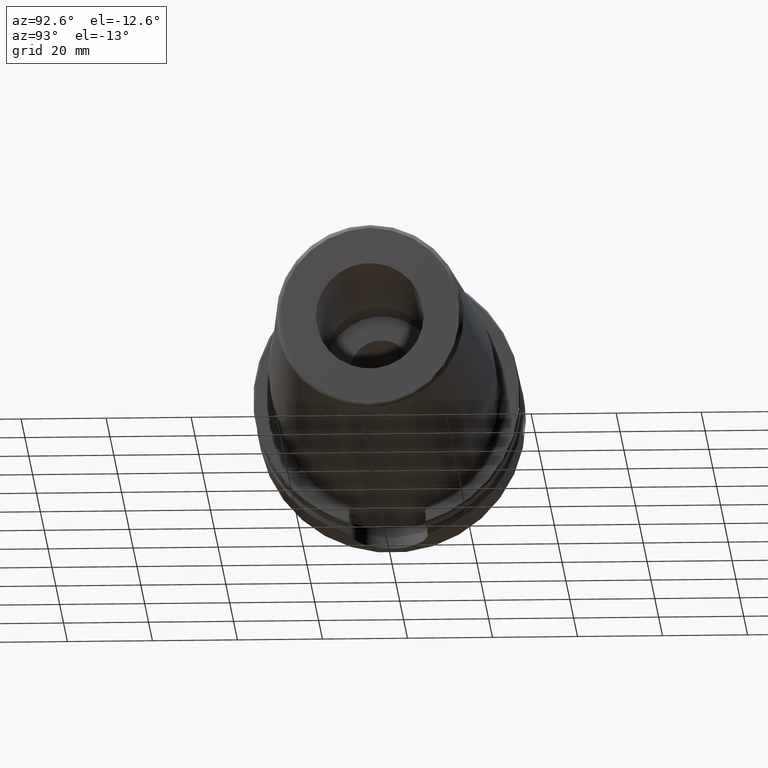
[diagram: clean part render]
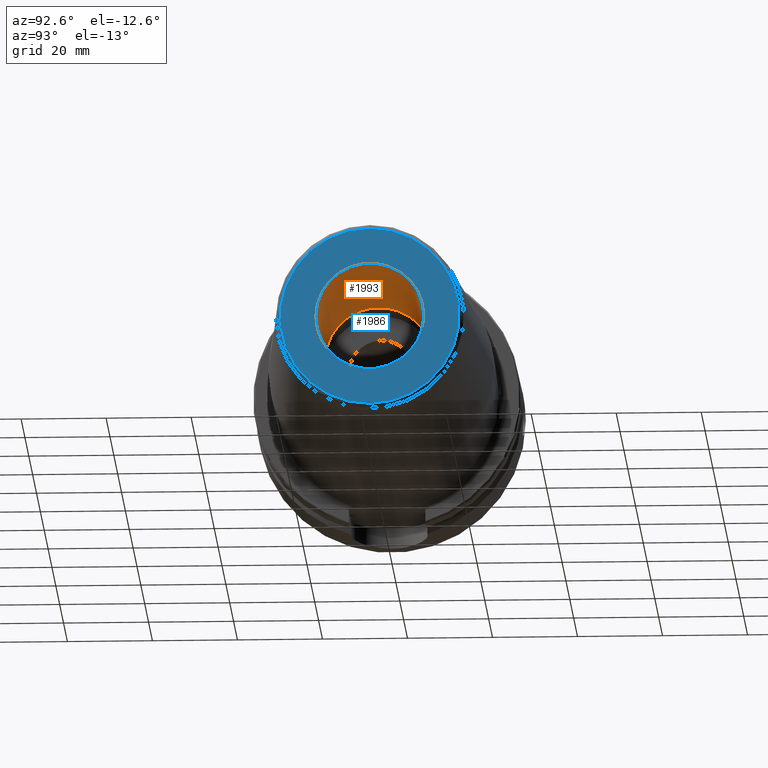
[diagram: same view with the hole feature highlighted: cylindrical wall and planar end face, labeled with their STEP entity ids]
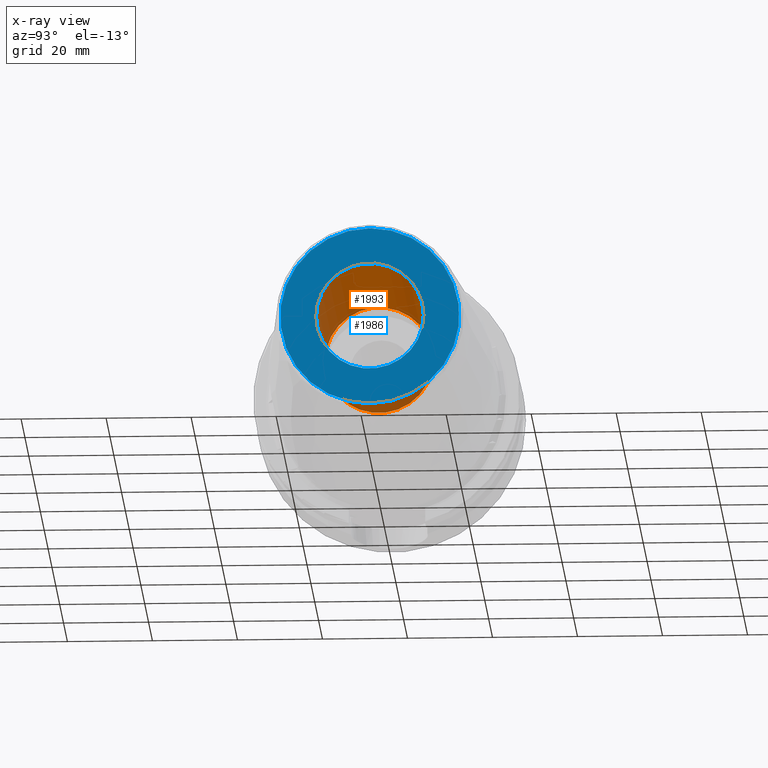
[diagram: x-ray of the same camera — body ghosted, the hole faces saturated]
A machine part, auxiliary view. The highlighted faces form one hole feature of diameter 25.4 mm: the cylindrical wall (entity #1993, orange) and its adjacent planar end face (entity #1986, blue) — they share a circular edge in the B-rep.
The next image is the same camera in x-ray (body ghosted, the hole faces saturated) — the bore reads through the body.
Wall:
#187=CYLINDRICAL_SURFACE('',#2153,12.7);
#229=FACE_OUTER_BOUND('',#349,.T.);
#349=EDGE_LOOP('',(#1379,#1380,#1381,#1382));
#475=LINE('',#3102,#579);
#579=VECTOR('',#2444,12.7);
#683=CIRCLE('',#2137,12.7);
#693=CIRCLE('',#2154,12.7);
#808=VERTEX_POINT('',#3006);
#828=VERTEX_POINT('',#3101);
#1018=EDGE_CURVE('',#808,#808,#683,.T.);
#1044=EDGE_CURVE('',#808,#828,#475,.T.);
#1045=EDGE_CURVE('',#828,#828,#693,.T.);
#1379=ORIENTED_EDGE('',*,*,#1018,.T.);
#1380=ORIENTED_EDGE('',*,*,#1044,.T.);
#1381=ORIENTED_EDGE('',*,*,#1045,.F.);
#1382=ORIENTED_EDGE('',*,*,#1044,.F.);
#1993=ADVANCED_FACE('',(#229),#187,.F.);
#2137=AXIS2_PLACEMENT_3D('',#3007,#2404,#2405);
#2153=AXIS2_PLACEMENT_3D('',#3100,#2442,#2443);
#2154=AXIS2_PLACEMENT_3D('',#3103,#2445,#2446);
#2404=DIRECTION('center_axis',(1.,0.,0.));
#2405=DIRECTION('ref_axis',(0.,0.,-1.));
#2442=DIRECTION('center_axis',(1.,0.,0.));
#2443=DIRECTION('ref_axis',(0.,1.,0.));
#2444=DIRECTION('',(-1.,0.,0.));
#2445=DIRECTION('center_axis',(1.,0.,0.));
#2446=DIRECTION('ref_axis',(0.,0.,-1.));
#3006=CARTESIAN_POINT('',(115.,-12.7,-1.55530143491714E-15));
#3007=CARTESIAN_POINT('Origin',(115.,0.,0.));
#3100=CARTESIAN_POINT('Origin',(91.,0.,0.));
#3101=CARTESIAN_POINT('',(67.,-12.7,-1.55530143491714E-15));
#3102=CARTESIAN_POINT('',(91.,-12.7,-1.55530143491714E-15));
#3103=CARTESIAN_POINT('Origin',(67.,0.,0.));
End face:
#107=FACE_BOUND('',#342,.T.);
#117=PLANE('',#2136);
#222=FACE_OUTER_BOUND('',#341,.T.);
#341=EDGE_LOOP('',(#1342));
#342=EDGE_LOOP('',(#1343));
#679=CIRCLE('',#2132,21.0756095083418);
#683=CIRCLE('',#2137,12.7);
#805=VERTEX_POINT('',#2998);
#808=VERTEX_POINT('',#3006);
#1014=EDGE_CURVE('',#805,#805,#679,.T.);
#1018=EDGE_CURVE('',#808,#808,#683,.T.);
#1342=ORIENTED_EDGE('',*,*,#1014,.F.);
#1343=ORIENTED_EDGE('',*,*,#1018,.F.);
#1986=ADVANCED_FACE('',(#222,#107),#117,.T.);
#2132=AXIS2_PLACEMENT_3D('',#2999,#2394,#2395);
#2136=AXIS2_PLACEMENT_3D('',#3005,#2402,#2403);
#2137=AXIS2_PLACEMENT_3D('',#3007,#2404,#2405);
#2394=DIRECTION('center_axis',(-1.,0.,0.));
#2395=DIRECTION('ref_axis',(0.,-1.,1.83697019872103E-16));
#2402=DIRECTION('center_axis',(1.,0.,0.));
#2403=DIRECTION('ref_axis',(0.,0.,-1.));
#2404=DIRECTION('center_axis',(1.,0.,0.));
#2405=DIRECTION('ref_axis',(0.,0.,-1.));
#2998=CARTESIAN_POINT('',(115.,-2.58101777244703E-15,21.0756095083418));
#2999=CARTESIAN_POINT('Origin',(115.,0.,0.));
#3005=CARTESIAN_POINT('Origin',(115.,12.7,0.));
#3006=CARTESIAN_POINT('',(115.,-12.7,-1.55530143491714E-15));
#3007=CARTESIAN_POINT('Origin',(115.,0.,0.));